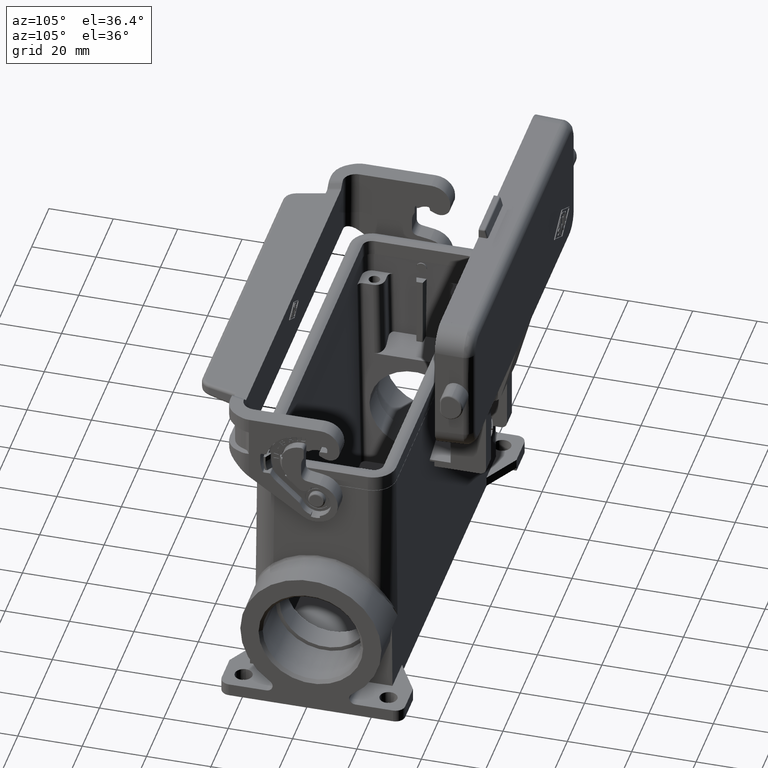
[diagram: clean part render]
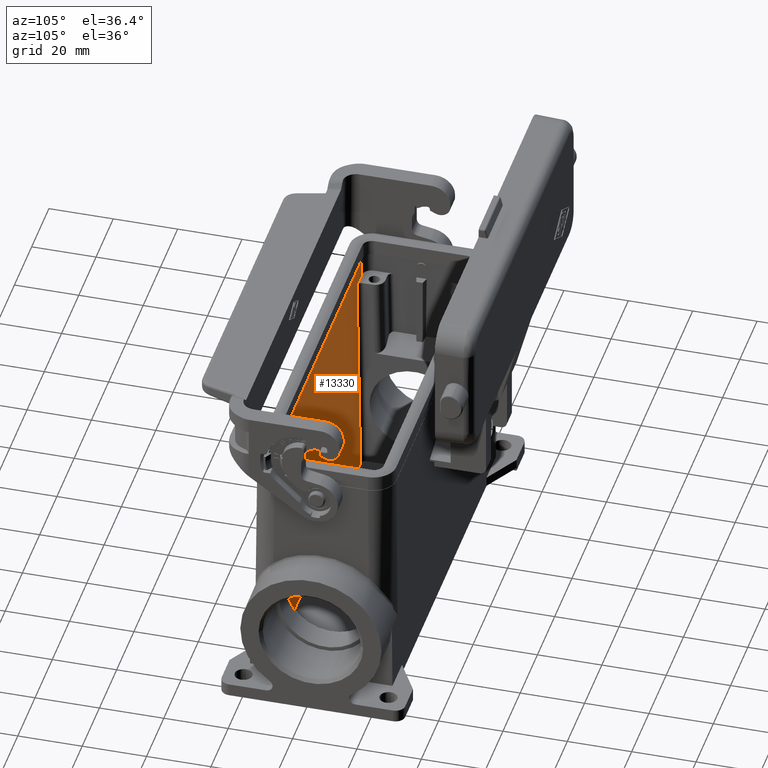
[diagram: same view with one face highlighted and labeled with its STEP entity id]
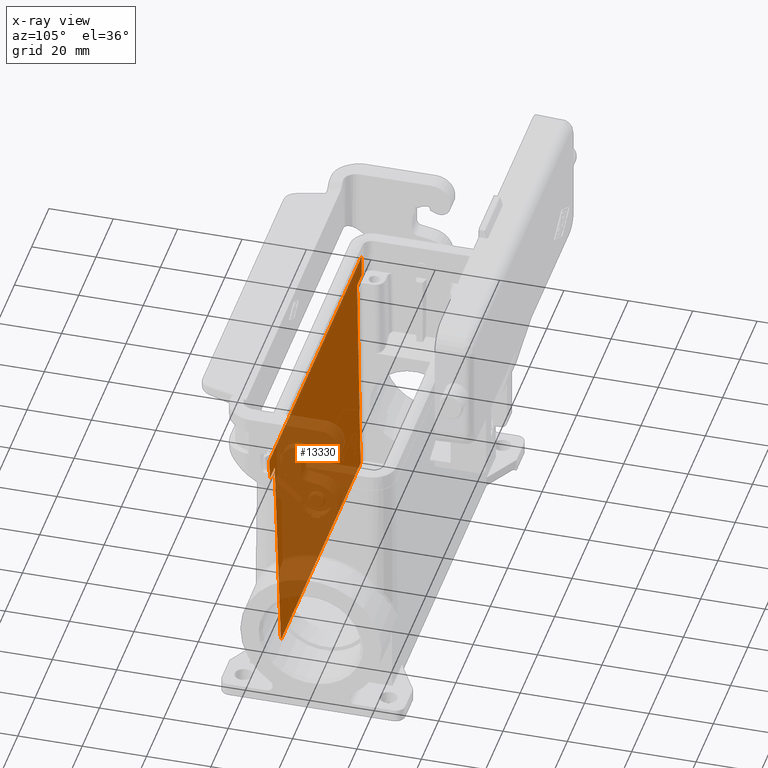
[diagram: x-ray of the same camera — body ghosted, the highlighted face saturated]
A machine part, auxiliary view. The second image highlights one B-rep face of the part: STEP entity #13330.
The next image is the same camera in x-ray: the body ghosted, the highlighted face saturated — about 55% of this face is hidden behind the body in this view.
In plain terms, the highlighted planar face has unit normal (0, -0.9997, -0.0233).
Its self-contained STEP definition (entity closure, byte-faithful):
#1080=CARTESIAN_POINT('',(111.985048331599,56.3707380555431,
-0.0698068516736236));
#1090=DIRECTION('',(0.0232626536972686,0.0232626536972685,
0.999458702441438));
#1100=VECTOR('',#1090,1.);
#1110=LINE('',#1080,#1100);
#1120=CARTESIAN_POINT('',(113.569390276056,57.95508,68.));
#1130=VERTEX_POINT('',#1120);
#1140=CARTESIAN_POINT('',(113.720679417531,58.1063691414752,74.5));
#1150=VERTEX_POINT('',#1140);
#1160=EDGE_CURVE('',#1130,#1150,#1110,.T.);
#3820=CARTESIAN_POINT('',(108.068984138028,57.95508,68.));
#3830=VERTEX_POINT('',#3820);
#3880=CARTESIAN_POINT('',(0.,57.95508,68.));
#3890=DIRECTION('',(-1.,0.,0.));
#3900=VECTOR('',#3890,1.);
#3910=LINE('',#3880,#3900);
#3920=EDGE_CURVE('',#1130,#3830,#3910,.T.);
#12780=CARTESIAN_POINT('',(73.568578,56.372791362065,0.0184115905912126)
);
#12790=DIRECTION('',(0.,0.999729241314835,-0.0232689505578672));
#12800=DIRECTION('',(1.,0.,0.));
#12810=AXIS2_PLACEMENT_3D('',#12780,#12790,#12800);
#12820=PLANE('',#12810);
#12830=CARTESIAN_POINT('',(0.,57.95508,68.));
#12840=DIRECTION('',(1.,0.,0.));
#12850=VECTOR('',#12840,1.);
#12860=LINE('',#12830,#12850);
#12870=CARTESIAN_POINT('',(7.06776572394445,57.95508,68.));
#12880=VERTEX_POINT('',#12870);
#12890=CARTESIAN_POINT('',(12.5681718619722,57.95508,68.));
#12900=VERTEX_POINT('',#12890);
#12910=EDGE_CURVE('',#12880,#12900,#12860,.T.);
#12920=ORIENTED_EDGE('',*,*,#12910,.T.);
#12930=CARTESIAN_POINT('',(8.65210766840137,56.3707380555431,
-0.0698068516736229));
#12940=DIRECTION('',(-0.0232626536972686,0.0232626536972686,
0.999458702441438));
#12950=VECTOR('',#12940,1.);
#12960=LINE('',#12930,#12950);
#12970=CARTESIAN_POINT('',(6.91647658246931,58.1063691414752,
74.4999999999997));
#12980=VERTEX_POINT('',#12970);
#12990=EDGE_CURVE('',#12880,#12980,#12960,.T.);
#13000=ORIENTED_EDGE('',*,*,#12990,.F.);
#13010=CARTESIAN_POINT('',(0.,58.1063691414752,74.4999999999997));
#13020=DIRECTION('',(1.,5.16814425358455E-17,2.22044604925031E-15));
#13030=VECTOR('',#13020,1.);
#13040=LINE('',#13010,#13030);
#13050=EDGE_CURVE('',#12980,#1150,#13040,.T.);
#13060=ORIENTED_EDGE('',*,*,#13050,.F.);
#13070=ORIENTED_EDGE('',*,*,#1160,.T.);
#13080=ORIENTED_EDGE('',*,*,#3920,.F.);
#13090=CARTESIAN_POINT('',(107.313349937455,57.1994457994277,
35.5348656497852));
#13100=DIRECTION('',(0.0232626536972686,0.0232626536972685,
0.999458702441438));
#13110=VECTOR('',#13100,1.);
#13120=LINE('',#13090,#13110);
#13130=CARTESIAN_POINT('',(106.556092723276,56.4421885852484,
2.99999999999998));
#13140=VERTEX_POINT('',#13130);
#13150=EDGE_CURVE('',#13140,#3830,#13120,.T.);
#13160=ORIENTED_EDGE('',*,*,#13150,.T.);
#13170=CARTESIAN_POINT('',(0.,56.4421885852484,2.99999999999998));
#13180=DIRECTION('',(-1.,0.,0.));
#13190=VECTOR('',#13180,1.);
#13200=LINE('',#13170,#13190);
#13210=CARTESIAN_POINT('',(14.0810632767239,56.4421885852484,
2.99999999999998));
#13220=VERTEX_POINT('',#13210);
#13230=EDGE_CURVE('',#13140,#13220,#13200,.T.);
#13240=ORIENTED_EDGE('',*,*,#13230,.F.);
#13250=CARTESIAN_POINT('',(13.3238060625445,57.1994457994277,
35.5348656497852));
#13260=DIRECTION('',(-0.0232626536972686,0.0232626536972685,
0.999458702441438));
#13270=VECTOR('',#13260,1.);
#13280=LINE('',#13250,#13270);
#13290=EDGE_CURVE('',#13220,#12900,#13280,.T.);
#13300=ORIENTED_EDGE('',*,*,#13290,.F.);
#13310=EDGE_LOOP('',(#13300,#13240,#13160,#13080,#13070,#13060,#13000,
#12920));
#13320=FACE_OUTER_BOUND('',#13310,.T.);
#13330=ADVANCED_FACE('',(#13320),#12820,.F.);